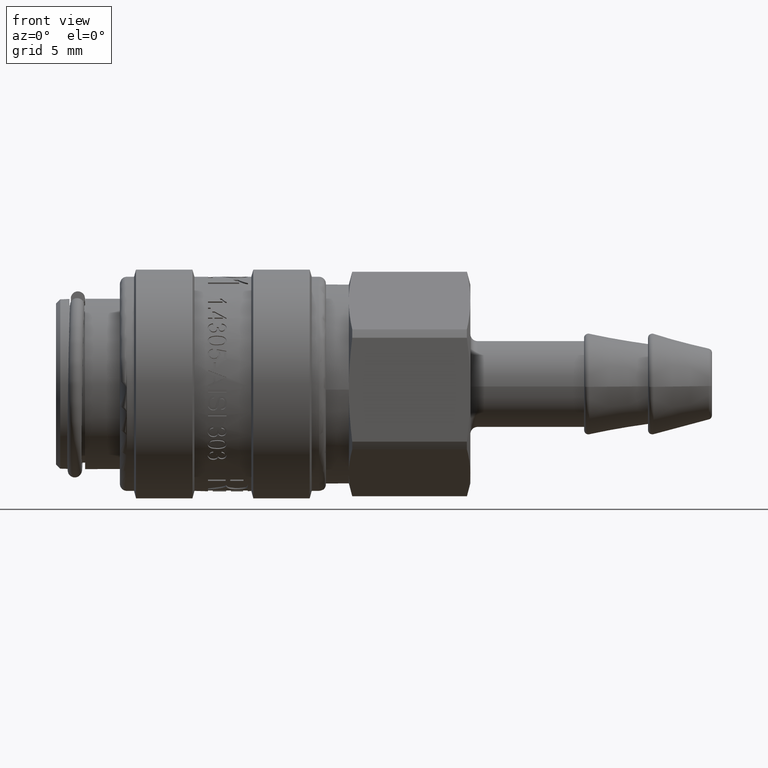
[diagram: clean part render]
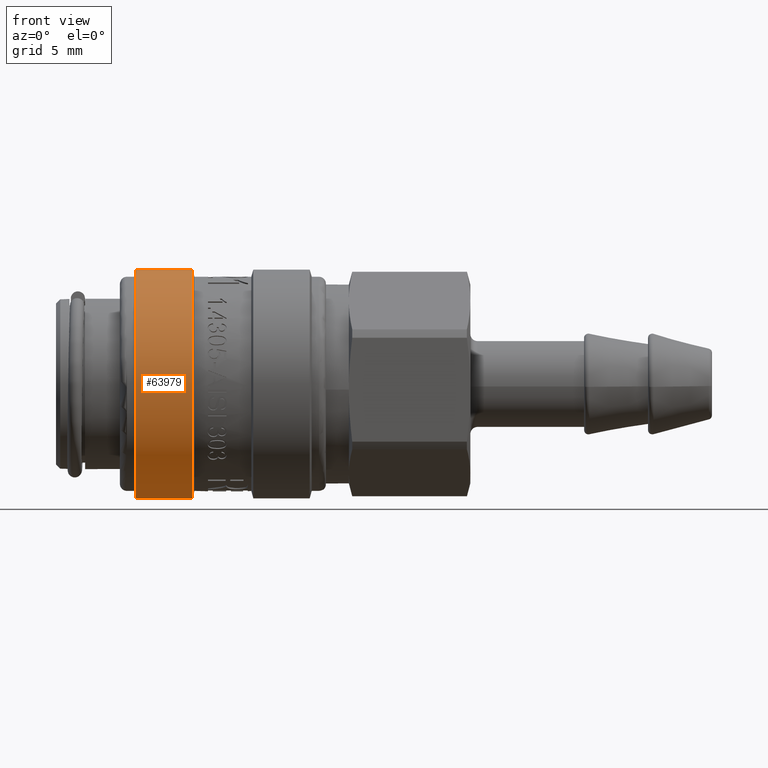
[diagram: same view with one face highlighted and labeled with its STEP entity id]
A machine part, front view. The second image highlights one B-rep face of the part: STEP entity #63979.
In plain terms, the highlighted cylindrical surface (bore or boss wall) has radius 8.075 mm, axis along (1, 0, 0).
Its self-contained STEP definition (entity closure, byte-faithful):
#63948=CARTESIAN_POINT('',(9.599326673973661,-1.139941101350958,-7.99413280384125));
#63949=VERTEX_POINT('',#63948);
#63950=CARTESIAN_POINT('',(9.599326673973661,0.0,0.0));
#63951=DIRECTION('',(1.0,0.0,0.0));
#63952=DIRECTION('',(0.0,-0.14116917663789,-0.989985486543808));
#63953=AXIS2_PLACEMENT_3D('',#63950,#63951,#63952);
#63954=CIRCLE('',#63953,8.074999999999999);
#63955=EDGE_CURVE('',#63949,#63949,#63954,.T.);
#63960=CARTESIAN_POINT('',(7.615,0.0,0.0));
#63961=DIRECTION('',(1.0,0.0,0.0));
#63962=DIRECTION('',(0.0,-0.14116917663789,-0.989985486543808));
#63963=AXIS2_PLACEMENT_3D('',#63960,#63961,#63962);
#63964=CYLINDRICAL_SURFACE('',#63963,8.074999999999999);
#63965=ORIENTED_EDGE('',*,*,#63955,.F.);
#63966=EDGE_LOOP('',(#63965));
#63967=FACE_OUTER_BOUND('',#63966,.T.);
#63968=CARTESIAN_POINT('',(5.63067332602634,-1.139941101350958,-7.994132803841251));
#63969=VERTEX_POINT('',#63968);
#63970=CARTESIAN_POINT('',(5.63067332602634,0.0,0.0));
#63971=DIRECTION('',(1.0,0.0,0.0));
#63972=DIRECTION('',(0.0,-0.141169176637889,-0.989985486543808));
#63973=AXIS2_PLACEMENT_3D('',#63970,#63971,#63972);
#63974=CIRCLE('',#63973,8.074999999999999);
#63975=EDGE_CURVE('',#63969,#63969,#63974,.T.);
#63976=ORIENTED_EDGE('',*,*,#63975,.T.);
#63977=EDGE_LOOP('',(#63976));
#63978=FACE_BOUND('',#63977,.T.);
#63979=ADVANCED_FACE('',(#63967,#63978),#63964,.T.);